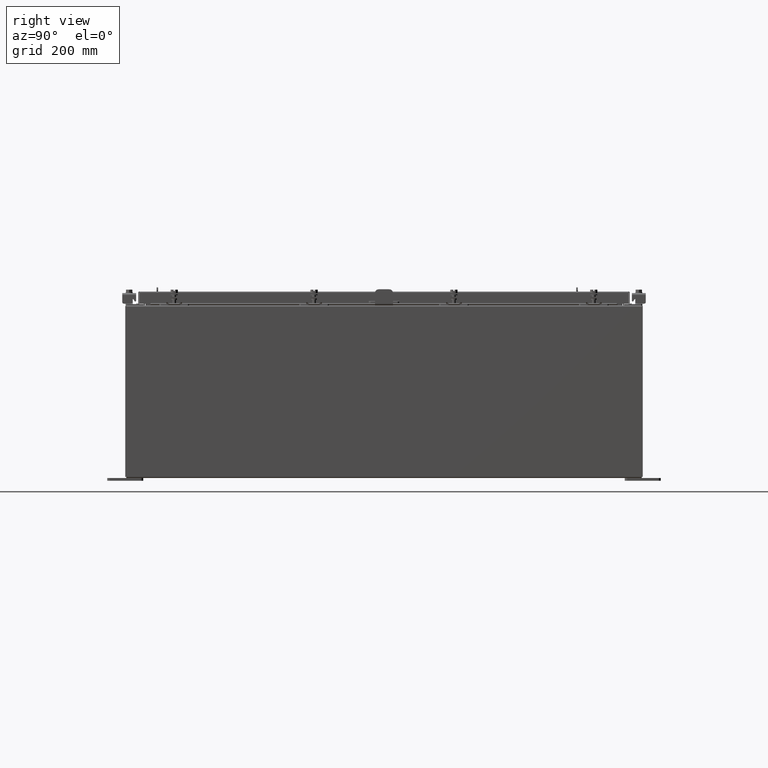
[diagram: clean part render]
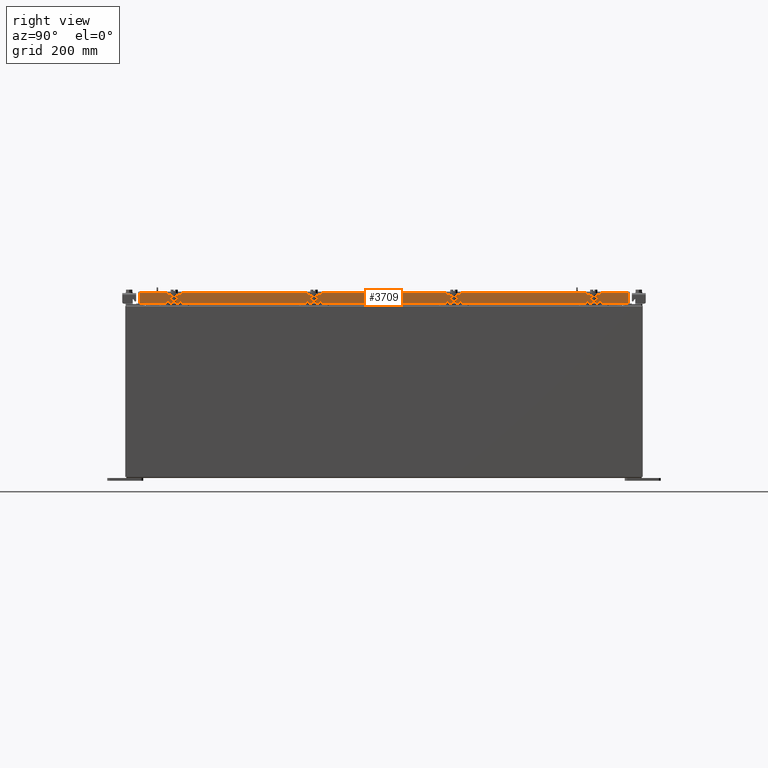
[diagram: same view with one face highlighted and labeled with its STEP entity id]
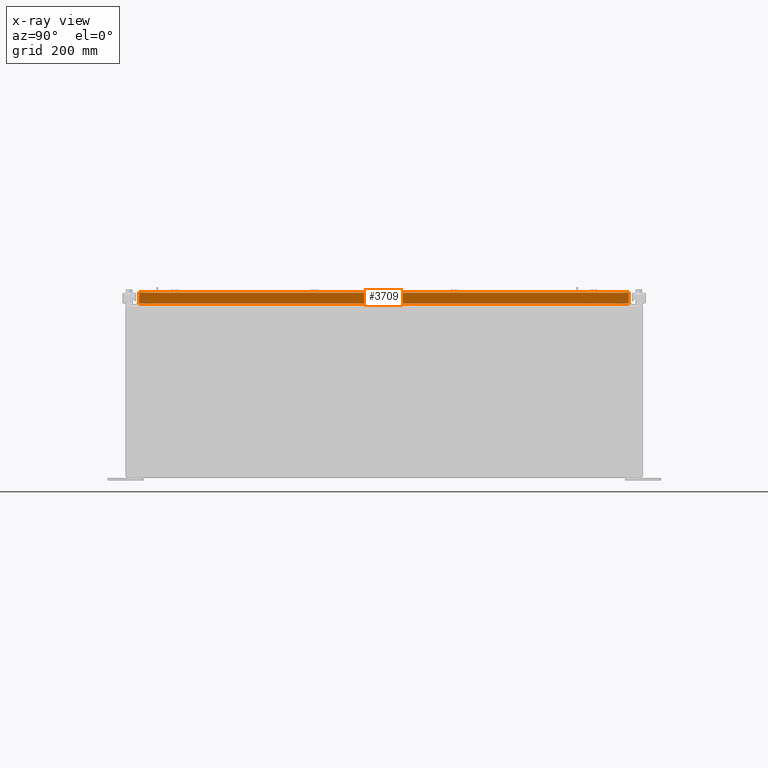
[diagram: x-ray of the same camera — body ghosted, the highlighted face saturated]
A machine part, right view. The second image highlights one B-rep face of the part: STEP entity #3709.
The next image is the same camera in x-ray: the body ghosted, the highlighted face saturated — about 0% of this face is hidden behind the body in this view.
In plain terms, the highlighted planar face has unit normal (1, 0, 0).
Its self-contained STEP definition (entity closure, byte-faithful):
#109 = DIRECTION ( 'NONE',  ( 1.000000000000000000, 0.0000000000000000000, 2.818880942772360100E-015 ) ) ;
#165 = ORIENTED_EDGE ( 'NONE', *, *, #23745, .F. ) ;
#1318 = VERTEX_POINT ( 'NONE', #23218 ) ;
#1765 = EDGE_CURVE ( 'NONE', #20770, #3614, #12690, .T. ) ;
#1846 = DIRECTION ( 'NONE',  ( -2.818880942772360500E-015, -6.982962677686269100E-015, 1.000000000000000000 ) ) ;
#2770 = CARTESIAN_POINT ( 'NONE',  ( 14.07799999999999600, 16.25515786437627200, -0.8500000000000005300 ) ) ;
#3329 = EDGE_CURVE ( 'NONE', #1318, #18425, #18883, .T. ) ;
#3599 = CARTESIAN_POINT ( 'NONE',  ( 14.07799999999999800, 17.00515786437626200, -0.08770000000000007000 ) ) ;
#3614 = VERTEX_POINT ( 'NONE', #3599 ) ;
#3709 = ADVANCED_FACE ( 'NONE', ( #16759 ), #19015, .T. ) ;
#4604 = LINE ( 'NONE', #23525, #9041 ) ;
#4845 = CARTESIAN_POINT ( 'NONE',  ( 14.07799999999999900, -17.09400000000000100, -0.8499999999999996400 ) ) ;
#6235 = ORIENTED_EDGE ( 'NONE', *, *, #3329, .F. ) ;
#6300 = EDGE_CURVE ( 'NONE', #9546, #7174, #15152, .T. ) ;
#7174 = VERTEX_POINT ( 'NONE', #12473 ) ;
#7661 = CARTESIAN_POINT ( 'NONE',  ( 14.07799999999999800, 0.0000000000000000000, 3.994501956836086200E-014 ) ) ;
#7912 = VECTOR ( 'NONE', #22316, 39.37007874015748100 ) ;
#8496 = LINE ( 'NONE', #20432, #7912 ) ;
#8667 = ORIENTED_EDGE ( 'NONE', *, *, #18574, .T. ) ;
#9041 = VECTOR ( 'NONE', #15994, 39.37007874015748100 ) ;
#9150 = ORIENTED_EDGE ( 'NONE', *, *, #6300, .F. ) ;
#9376 = CARTESIAN_POINT ( 'NONE',  ( 14.07799999999999800, 17.00515786437626500, 1.586914022634634500E-013 ) ) ;
#9546 = VERTEX_POINT ( 'NONE', #11392 ) ;
#10016 = VECTOR ( 'NONE', #18096, 39.37007874015748100 ) ;
#11392 = CARTESIAN_POINT ( 'NONE',  ( 14.07799999999999900, -17.00515786437626900, -0.8499999999999996400 ) ) ;
#11401 = CARTESIAN_POINT ( 'NONE',  ( 14.07799999999999800, -17.00515786437627200, -0.07469999999999978000 ) ) ;
#11844 = EDGE_LOOP ( 'NONE', ( #9150, #21457, #6235, #165, #24428, #8667 ) ) ;
#12473 = CARTESIAN_POINT ( 'NONE',  ( 14.07799999999999800, -17.00515786437627200, -0.08770000000000007000 ) ) ;
#12690 = LINE ( 'NONE', #9376, #16578 ) ;
#13328 = DIRECTION ( 'NONE',  ( 2.818880942772360100E-015, 0.0000000000000000000, -1.000000000000000000 ) ) ;
#13793 = VECTOR ( 'NONE', #23629, 39.37007874015748100 ) ;
#14464 = LINE ( 'NONE', #4845, #10016 ) ;
#15152 = LINE ( 'NONE', #11401, #24033 ) ;
#15994 = DIRECTION ( 'NONE',  ( 0.0000000000000000000, -1.000000000000000000, 0.0000000000000000000 ) ) ;
#16578 = VECTOR ( 'NONE', #1846, 39.37007874015748100 ) ;
#16759 = FACE_OUTER_BOUND ( 'NONE', #11844, .T. ) ;
#17115 = EDGE_CURVE ( 'NONE', #18425, #9546, #14464, .T. ) ;
#18096 = DIRECTION ( 'NONE',  ( 0.0000000000000000000, -1.000000000000000000, 0.0000000000000000000 ) ) ;
#18425 = VERTEX_POINT ( 'NONE', #20113 ) ;
#18574 = EDGE_CURVE ( 'NONE', #3614, #7174, #8496, .T. ) ;
#18820 = AXIS2_PLACEMENT_3D ( 'NONE', #7661, #109, #13328 ) ;
#18883 = LINE ( 'NONE', #2770, #13793 ) ;
#19015 = PLANE ( 'NONE',  #18820 ) ;
#20113 = CARTESIAN_POINT ( 'NONE',  ( 14.07799999999999600, -16.25515786437626900, -0.8500000000000005300 ) ) ;
#20351 = CARTESIAN_POINT ( 'NONE',  ( 14.07799999999999900, 17.00515786437627200, -0.8499999999999996400 ) ) ;
#20432 = CARTESIAN_POINT ( 'NONE',  ( 14.07799999999999800, 0.0000000000000000000, -0.08770000000000007000 ) ) ;
#20770 = VERTEX_POINT ( 'NONE', #20351 ) ;
#20879 = DIRECTION ( 'NONE',  ( -2.818880942772360500E-015, -6.982962677686269100E-015, 1.000000000000000000 ) ) ;
#21457 = ORIENTED_EDGE ( 'NONE', *, *, #17115, .F. ) ;
#22316 = DIRECTION ( 'NONE',  ( 0.0000000000000000000, -1.000000000000000000, 0.0000000000000000000 ) ) ;
#23218 = CARTESIAN_POINT ( 'NONE',  ( 14.07799999999999600, 16.25515786437626900, -0.8500000000000005300 ) ) ;
#23525 = CARTESIAN_POINT ( 'NONE',  ( 14.07799999999999900, -17.09400000000000100, -0.8499999999999996400 ) ) ;
#23629 = DIRECTION ( 'NONE',  ( 0.0000000000000000000, -1.000000000000000000, 0.0000000000000000000 ) ) ;
#23745 = EDGE_CURVE ( 'NONE', #20770, #1318, #4604, .T. ) ;
#24033 = VECTOR ( 'NONE', #20879, 39.37007874015748100 ) ;
#24428 = ORIENTED_EDGE ( 'NONE', *, *, #1765, .T. ) ;